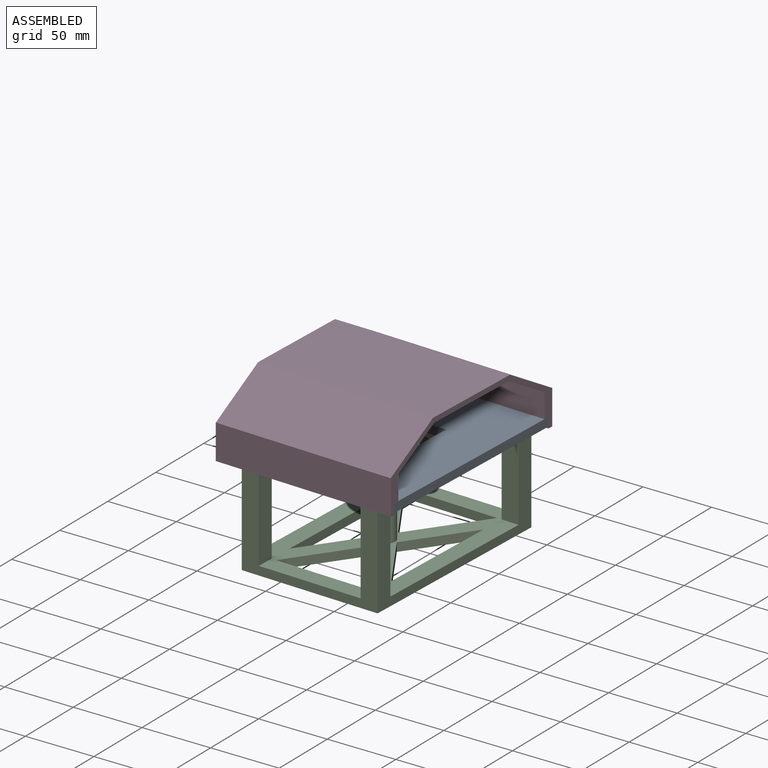
[diagram: assembled view]
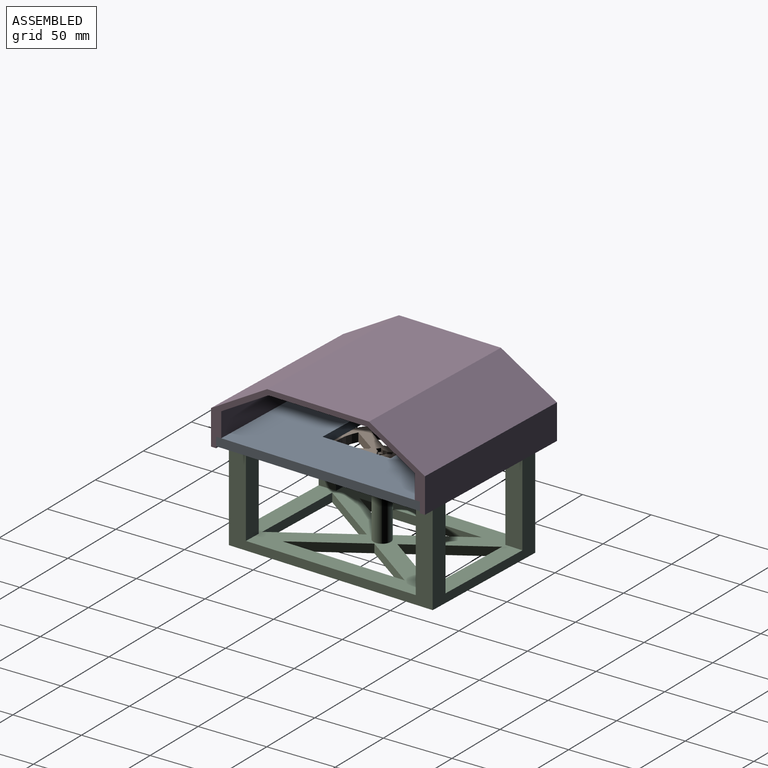
[diagram: assembled view, second angle]
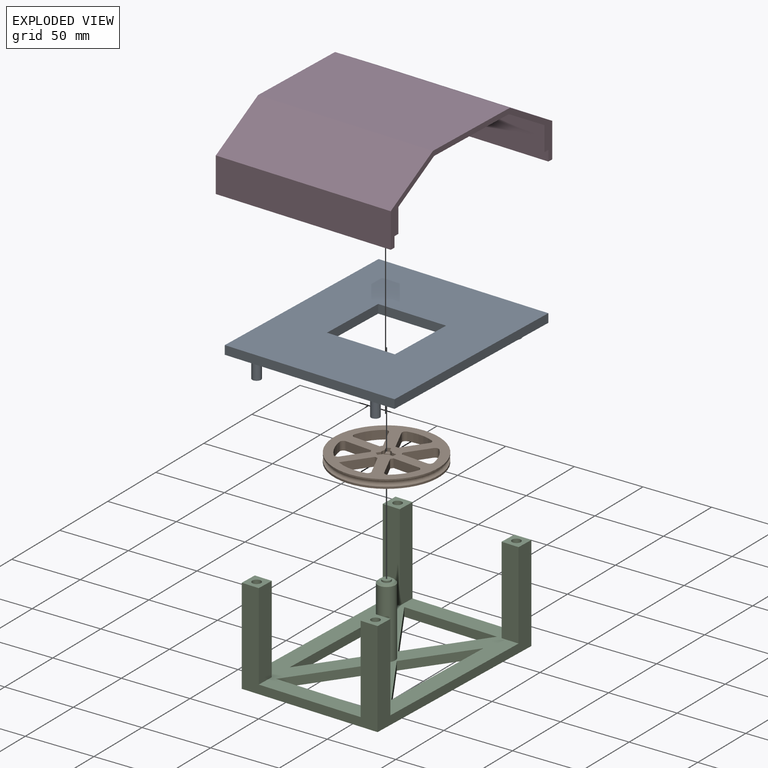
[diagram: exploded view]
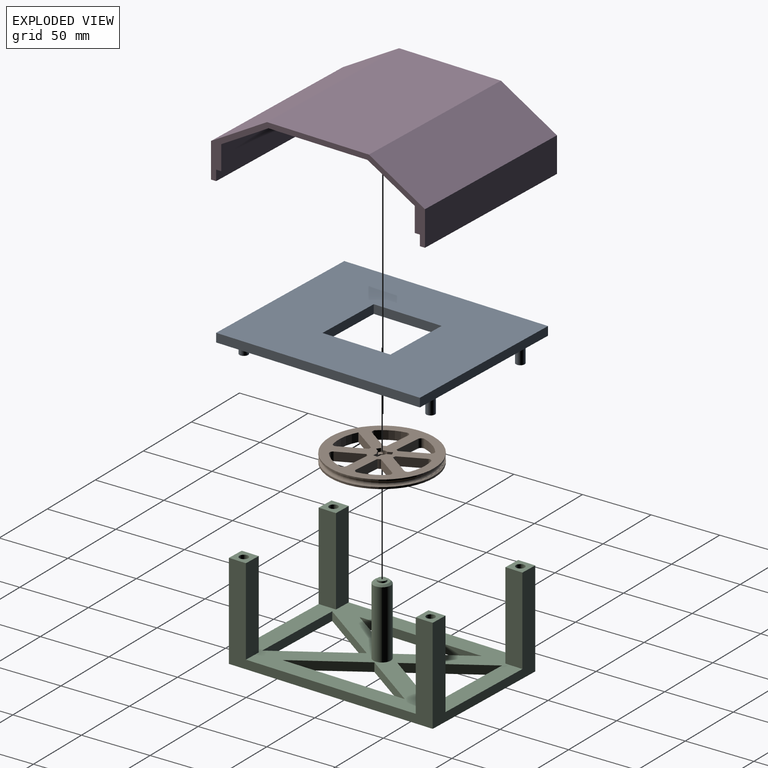
[diagram: exploded view, second angle]
ASSEMBLY  parts=4 mates=8
PART A: 18 faces, bbox 152.4x127x19.1 mm
  f0: plane 152.4x6.35mm, normal (0,1,0), area 967.7mm2, adj f1,f7,f8,f9
  f1: plane 127x6.35mm, normal (-1,0,0), area 806.5mm2, adj f0,f2,f8,f9
  f2: plane 152.4x6.35mm, normal (0,-1,0), area 967.7mm2, adj f1,f7,f8,f9
  f3: plane 50.8x6.35mm, normal (1,0,0), area 322.6mm2, adj f4,f6,f8,f9
  f4: plane 50.8x6.35mm, normal (0,-1,0), area 322.6mm2, adj f3,f5,f8,f9
  f5: plane 50.8x6.35mm, normal (-1,0,0), area 322.6mm2, adj f4,f6,f8,f9
  f6: plane 50.8x6.35mm, normal (0,1,0), area 322.6mm2, adj f3,f5,f8,f9
  f7: plane 127x6.35mm, normal (1,0,0), area 806.5mm2, adj f0,f2,f8,f9
  f8: plane 152.4x127mm, normal (0,0,1), area 16774.2mm2, adj f0,f1,f2,f3,f4,f5,f6,f7
  f9: plane 152.4x127mm, normal (0,0,-1), area 16647.5mm2, adj f0,f1,f2,f3,f4,f5,f6,f7
  f10: cylinder r=3.17mm len=12.7mm, axis (0,0,1), area 253.4mm2, adj f9,f11
  f11: plane 6.35x6.35mm, normal (0,0,-1), area 31.7mm2, adj f10
  f12: cylinder r=3.17mm len=12.7mm, axis (0,0,1), area 253.4mm2, adj f9,f13
  f13: plane 6.35x6.35mm, normal (0,0,-1), area 31.7mm2, adj f12
  f14: cylinder r=3.17mm len=12.7mm, axis (0,0,1), area 253.4mm2, adj f9,f15
  f15: plane 6.35x6.35mm, normal (0,0,-1), area 31.7mm2, adj f14
  f16: cylinder r=3.17mm len=12.7mm, axis (0,0,1), area 253.4mm2, adj f9,f17
  f17: plane 6.35x6.35mm, normal (0,0,-1), area 31.7mm2, adj f16
PART B: 55 faces, bbox 85.4x85.4x6.4 mm
  f0: cylinder r=3.17mm len=6.35mm, axis (0,0,-1), area 50.7mm2, adj f1,f42,f43,f44,f46,f47,f48,f49
  f1: plane 76.2x76.2mm, normal (0,0,1), area 2663mm2, adj f0,f2,f3,f4,f5,f6,f7,f8
  f2: cylinder r=38.1mm len=76.2mm, axis (0,0,-1), area 273.6mm2, adj f1,f40
  f3: plane 19.74x11.4mm, normal (0.5,-0.87,0), area 144.7mm2, adj f1,f4,f38,f39
  f4: cylinder r=9.53mm len=6.35mm, axis (0,0,-1), area 13.6mm2, adj f1,f3,f5,f39
  f5: plane 19.78x6.35mm, normal (-1,0,0), area 125.6mm2, adj f1,f4,f6,f39
  f6: cylinder r=2.54mm len=6.35mm, axis (0,0,-1), area 28.9mm2, adj f1,f5,f38,f39
  f7: plane 17.13x9.89mm, normal (-0.5,0.87,0), area 125.6mm2, adj f1,f8,f33,f39
  f8: cylinder r=2.54mm len=6.35mm, axis (0,0,-1), area 28.9mm2, adj f1,f7,f9,f39
  f9: cylinder r=31.75mm len=19.04mm, axis (0,0,-1), area 122.8mm2, adj f1,f8,f10,f39
  f10: cylinder r=2.54mm len=6.35mm, axis (0,0,-1), area 28.9mm2, adj f1,f9,f11,f39
  f11: plane 17.13x9.89mm, normal (-0.5,-0.87,0), area 125.6mm2, adj f1,f10,f33,f39
  f12: plane 17.13x9.89mm, normal (-0.5,-0.87,0), area 125.6mm2, adj f1,f13,f34,f39
  f13: cylinder r=2.54mm len=6.35mm, axis (0,0,-1), area 28.9mm2, adj f1,f12,f14,f39
  f14: cylinder r=31.75mm len=16.49mm, axis (0,0,-1), area 122.8mm2, adj f1,f13,f15,f39
  f15: cylinder r=2.54mm len=6.35mm, axis (0,0,-1), area 28.9mm2, adj f1,f14,f16,f39
  f16: plane 19.78x6.35mm, normal (1,0,0), area 125.6mm2, adj f1,f15,f34,f39
  f17: plane 17.13x9.89mm, normal (0.5,-0.87,0), area 125.6mm2, adj f1,f18,f35,f39
  f18: cylinder r=2.54mm len=6.35mm, axis (0,0,-1), area 28.9mm2, adj f1,f17,f19,f39
  f19: cylinder r=31.75mm len=19.04mm, axis (0,0,-1), area 122.8mm2, adj f1,f18,f20,f39
  f20: cylinder r=2.54mm len=6.35mm, axis (0,0,-1), area 28.9mm2, adj f1,f19,f21,f39
  f21: plane 17.13x9.89mm, normal (0.5,0.87,0), area 125.6mm2, adj f1,f20,f35,f39
  f22: plane 19.78x6.35mm, normal (1,0,0), area 125.6mm2, adj f1,f23,f36,f39
  f23: cylinder r=2.54mm len=6.35mm, axis (0,0,-1), area 28.9mm2, adj f1,f22,f24,f39
  f24: cylinder r=31.75mm len=16.49mm, axis (0,0,-1), area 122.8mm2, adj f1,f23,f25,f39
  f25: cylinder r=2.54mm len=6.35mm, axis (0,0,-1), area 28.9mm2, adj f1,f24,f26,f39
  f26: plane 17.13x9.89mm, normal (-0.5,0.87,0), area 125.6mm2, adj f1,f25,f36,f39
  f27: plane 17.13x9.89mm, normal (0.5,0.87,0), area 125.6mm2, adj f1,f28,f37,f39
  f28: cylinder r=2.54mm len=6.35mm, axis (0,0,-1), area 28.9mm2, adj f1,f27,f29,f39
  f29: cylinder r=31.75mm len=16.49mm, axis (0,0,-1), area 122.8mm2, adj f1,f28,f30,f39
  f30: cylinder r=2.54mm len=6.35mm, axis (0,0,-1), area 28.9mm2, adj f1,f29,f31,f39
  f31: plane 19.78x6.35mm, normal (-1,0,0), area 125.6mm2, adj f1,f30,f37,f39
  f32: cylinder r=38.1mm len=76.2mm, axis (0,0,-1), area 334.4mm2, adj f39,f40
  f33: cylinder r=9.53mm len=6.35mm, axis (0,0,-1), area 13.6mm2, adj f1,f7,f11,f39
  f34: cylinder r=9.53mm len=6.35mm, axis (0,0,-1), area 13.6mm2, adj f1,f12,f16,f39
  f35: cylinder r=9.53mm len=6.35mm, axis (0,0,-1), area 13.6mm2, adj f1,f17,f21,f39
  f36: cylinder r=9.53mm len=6.35mm, axis (0,0,-1), area 13.6mm2, adj f1,f22,f26,f39
  f37: cylinder r=9.53mm len=6.35mm, axis (0,0,-1), area 13.6mm2, adj f1,f27,f31,f39
  f38: cylinder r=31.75mm len=18.49mm, axis (0,0,-1), area 142.7mm2, adj f1,f3,f6,f39
  f39: plane 76.2x76.2mm, normal (0,0,-1), area 2599.5mm2, adj f3,f4,f5,f6,f7,f8,f9,f10
  f40: torus R=38.1mm, axis (0,0,1), area 1387.1mm2, adj f2,f32
  f41: plane 2.75x2.54mm, normal (-0.87,0.5,0), area 8.1mm2, adj f1,f42,f43,f44
  f42: plane 4.71x4.55mm, normal (0,0,1), area 10.5mm2, adj f0,f41,f43,f44
  f43: plane 3.12x2.54mm, normal (-0.5,-0.87,0), area 9.1mm2, adj f0,f1,f41,f42
  f44: plane 3.12x2.54mm, normal (0.5,0.87,0), area 9.1mm2, adj f0,f1,f41,f42
  f45: plane 2.75x2.54mm, normal (0.87,0.5,0), area 8.1mm2, adj f1,f46,f47,f48
  f46: plane 4.71x4.55mm, normal (0,0,1), area 10.5mm2, adj f0,f45,f47,f48
  f47: plane 3.12x2.54mm, normal (-0.5,0.87,0), area 9.1mm2, adj f0,f1,f45,f46
  f48: plane 3.12x2.54mm, normal (0.5,-0.87,0), area 9.1mm2, adj f0,f1,f45,f46
  f49: plane 3.6x3.18mm, normal (0,0,1), area 10.5mm2, adj f0,f50,f51,f52
  f50: plane 3.6x2.54mm, normal (-1,0,0), area 9.1mm2, adj f0,f1,f49,f51
  f51: plane 3.18x2.54mm, normal (0,-1,0), area 8.1mm2, adj f1,f49,f50,f52
  f52: plane 3.6x2.54mm, normal (1,0,0), area 9.1mm2, adj f0,f1,f49,f51
  f53: cylinder r=6.35mm len=12.7mm, axis (0,0,-1), area 101.3mm2, adj f39,f54
  f54: plane 12.7x12.7mm, normal (0,0,-1), area 95mm2, adj f0,f53
PART C: 43 faces, bbox 101.6x152.4x69.9 mm
  f0: plane 152.4x101.6mm, normal (0,0,1), area 8311.3mm2, adj f1,f2,f3,f4,f5,f6,f7,f8
  f1: plane 52.05x34.7mm, normal (0.83,0.55,0), area 397.3mm2, adj f0,f2,f16,f17
  f2: plane 69.4x6.35mm, normal (0,-1,0), area 440.7mm2, adj f0,f1,f16,f17
  f3: plane 45.7x30.47mm, normal (0.83,-0.55,0), area 348.8mm2, adj f0,f4,f12,f17
  f4: plane 91.4x6.35mm, normal (-1,0,0), area 580.4mm2, adj f0,f3,f12,f17
  f5: plane 69.4x6.35mm, normal (0,1,0), area 440.7mm2, adj f0,f6,f13,f17
  f6: plane 52.05x34.7mm, normal (0.83,-0.55,0), area 397.3mm2, adj f0,f5,f13,f17
  f7: plane 91.4x6.35mm, normal (1,0,0), area 580.4mm2, adj f0,f8,f14,f17
  f8: plane 45.7x30.47mm, normal (-0.83,-0.55,0), area 348.8mm2, adj f0,f7,f14,f17
  f9: plane 152.4x69.85mm, normal (-1,0,0), area 2580.6mm2, adj f0,f10,f15,f17,f24,f25,f30,f31
  f10: plane 101.6x69.85mm, normal (0,-1,0), area 2258.1mm2, adj f0,f9,f11,f17,f23,f25,f26,f28
  f11: plane 152.4x69.85mm, normal (1,0,0), area 2596.5mm2, adj f0,f10,f15,f17,f27,f28,f33,f34
  f12: plane 45.7x30.47mm, normal (0.83,0.55,0), area 348.8mm2, adj f0,f3,f4,f17
  f13: plane 52.05x34.7mm, normal (-0.83,-0.55,0), area 397.3mm2, adj f0,f5,f6,f17
  f14: plane 45.7x30.47mm, normal (-0.83,0.55,0), area 348.8mm2, adj f0,f7,f8,f17
  f15: plane 101.6x69.85mm, normal (0,1,0), area 2258.1mm2, adj f0,f9,f11,f17,f29,f31,f32,f34
  f16: plane 52.05x34.7mm, normal (-0.83,0.55,0), area 397.3mm2, adj f0,f1,f2,f17
  f17: plane 152.4x101.6mm, normal (0,0,-1), area 9086.3mm2, adj f1,f2,f3,f4,f5,f6,f7,f8
  f18: cylinder r=6.35mm len=49.53mm, axis (0,0,-1), area 1976.2mm2, adj f0,f20
  f19: plane 10.16x10.16mm, normal (0,0,1), area 49.4mm2, adj f20,f21
  f20: cone r=5.08mm half-angle=45deg, axis (0,0,-1), area 64.5mm2, adj f18,f19
  f21: cylinder r=3.17mm len=6.35mm, axis (0,0,-1), area 25.3mm2, adj f19,f22
  f22: plane 6.35x6.35mm, normal (0,0,1), area 31.7mm2, adj f21
  f23: plane 63.5x12.7mm, normal (1,0,0), area 806.5mm2, adj f0,f10,f24,f25
  f24: plane 63.5x12.7mm, normal (0,1,0), area 806.4mm2, adj f0,f9,f23,f25
  f25: plane 12.7x12.7mm, normal (0,0,1), area 129.6mm2, adj f9,f10,f23,f24,f41
  f26: plane 63.5x12.7mm, normal (-1,0,0), area 806.5mm2, adj f0,f10,f27,f28
  f27: plane 63.5x12.7mm, normal (0,1,0), area 806.4mm2, adj f0,f11,f26,f28
  f28: plane 12.7x12.7mm, normal (0,0,1), area 129.6mm2, adj f10,f11,f26,f27,f39
  f29: plane 63.5x12.7mm, normal (1,0,0), area 806.5mm2, adj f0,f15,f30,f31
  f30: plane 63.5x12.7mm, normal (0,-1,0), area 806.4mm2, adj f0,f9,f29,f31
  f31: plane 12.7x12.7mm, normal (0,0,1), area 129.6mm2, adj f9,f15,f29,f30,f37
  f32: plane 63.5x12.95mm, normal (-1,0,0), area 822.3mm2, adj f0,f15,f33,f34
  f33: plane 63.5x12.7mm, normal (0,-1,0), area 806.4mm2, adj f0,f11,f32,f34
  f34: plane 12.95x12.7mm, normal (0,0,1), area 132.8mm2, adj f11,f15,f32,f33,f35
  f35: cylinder r=3.17mm len=12.7mm, axis (0,0,1), area 253.4mm2, adj f34,f36
  f36: plane 6.35x6.35mm, normal (0,0,1), area 31.7mm2, adj f35
  f37: cylinder r=3.17mm len=12.7mm, axis (0,0,1), area 253.4mm2, adj f31,f38
  f38: plane 6.35x6.35mm, normal (0,0,1), area 31.7mm2, adj f37
  f39: cylinder r=3.17mm len=12.7mm, axis (0,0,1), area 253.4mm2, adj f28,f40
  f40: plane 6.35x6.35mm, normal (0,0,1), area 31.7mm2, adj f39
  f41: cylinder r=3.17mm len=12.7mm, axis (0,0,1), area 253.4mm2, adj f25,f42
  f42: plane 6.35x6.35mm, normal (0,0,1), area 31.7mm2, adj f41
PART D: 18 faces, bbox 160x130.8x49.6 mm
  f0: plane 130.81x25.4mm, normal (-1,0,0), area 3322.6mm2, adj f1,f14,f15,f17
  f1: plane 130.81x41.91mm, normal (-0.5,0,-0.87), area 6330.4mm2, adj f0,f2,f15,f17
  f2: plane 130.81x76.2mm, normal (0,0,-1), area 9967.7mm2, adj f1,f3,f15,f17
  f3: plane 130.81x41.91mm, normal (0.5,0,-0.87), area 6330.4mm2, adj f2,f4,f15,f17
  f4: plane 130.81x25.4mm, normal (1,0,0), area 3322.6mm2, adj f3,f14,f15,f17
  f5: plane 127x7.62mm, normal (-1,0,0), area 967.7mm2, adj f6,f14,f15,f16
  f6: plane 127x3.81mm, normal (0,0,1), area 483.9mm2, adj f5,f7,f15,f16
  f7: plane 127x17.78mm, normal (-1,0,0), area 2258.1mm2, adj f6,f8,f15,f16
  f8: plane 127x35.31mm, normal (-0.5,0,0.87), area 5178.2mm2, adj f7,f9,f15,f16
  f9: plane 127x74.16mm, normal (0,0,1), area 9418.1mm2, adj f8,f10,f15,f16
  f10: plane 127x35.31mm, normal (0.5,0,0.87), area 5178.2mm2, adj f9,f11,f15,f16
  f11: plane 127x17.78mm, normal (1,0,0), area 2258.1mm2, adj f10,f12,f15,f16
  f12: plane 127x3.81mm, normal (0,0,1), area 483.9mm2, adj f11,f13,f15,f16
  f13: plane 127x7.62mm, normal (1,0,0), area 967.7mm2, adj f12,f14,f15,f16
  f14: plane 160.02x130.81mm, normal (0,0,1), area 1577.4mm2, adj f0,f4,f5,f13,f15,f16,f17
  f15: plane 160.02x49.6mm, normal (0,1,0), area 955.2mm2, adj f0,f1,f2,f3,f4,f5,f6,f7
  f16: plane 152.4x45.79mm, normal (0,1,0), area 5967.2mm2, adj f5,f6,f7,f8,f9,f10,f11,f12
  f17: plane 160.02x49.6mm, normal (0,-1,0), area 6922.4mm2, adj f0,f1,f2,f3,f4,f14
PLACE A rot(axis=(0,0,1),88deg) t=(86.15,-31.56,83.27)mm
PLACE B rot(axis=(0,0,1),24.6deg) t=(25.42,46.86,70.57)mm
PLACE C rot(axis=(0,0,1),178deg) t=(25.42,46.86,13.42)mm
PLACE D rot(axis=(-0.72,-0.69,0),180deg) t=(88.88,44.59,131.6)mm
MATE cylindrical A.f12 <-> C.f35  axis (0,0,1) through (-21.5,-21.36,76.92)mm
MATE planar D.f6 <-> A.f8  axis (0,0,-1) through (-35.32,125.28,89.62)mm
MATE planar D.f16 <-> A.f0  axis (1,-0.04,0) through (-38.04,49.13,102.77)mm
MATE cylindrical A.f10 <-> C.f37  axis (0,0,1) through (67.34,-24.53,76.92)mm
MATE cylindrical C.f18 <-> B.f40  axis (0,0,1) through (25.42,46.86,70.57)mm
MATE planar C.f37 <-> A.f9  axis (0,0,1) through (67.34,-24.53,83.27)mm
MATE planar B.f39 <-> C.f18  axis (0,0,-1) through (7.24,52.42,70.57)mm
MATE planar D.f13 <-> A.f1  axis (0.04,1,0) through (22.69,-29.29,82)mm
